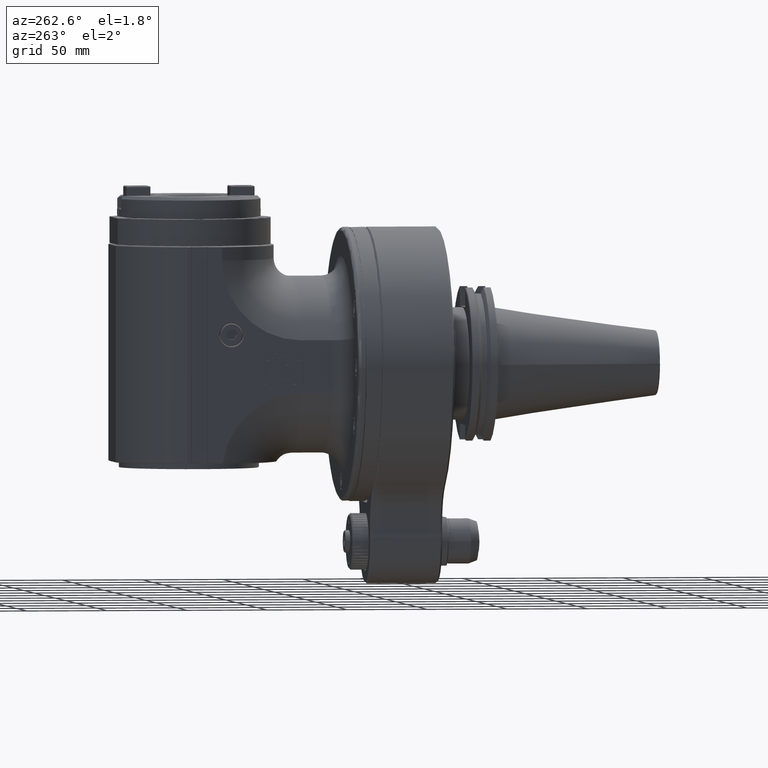
[diagram: clean part render]
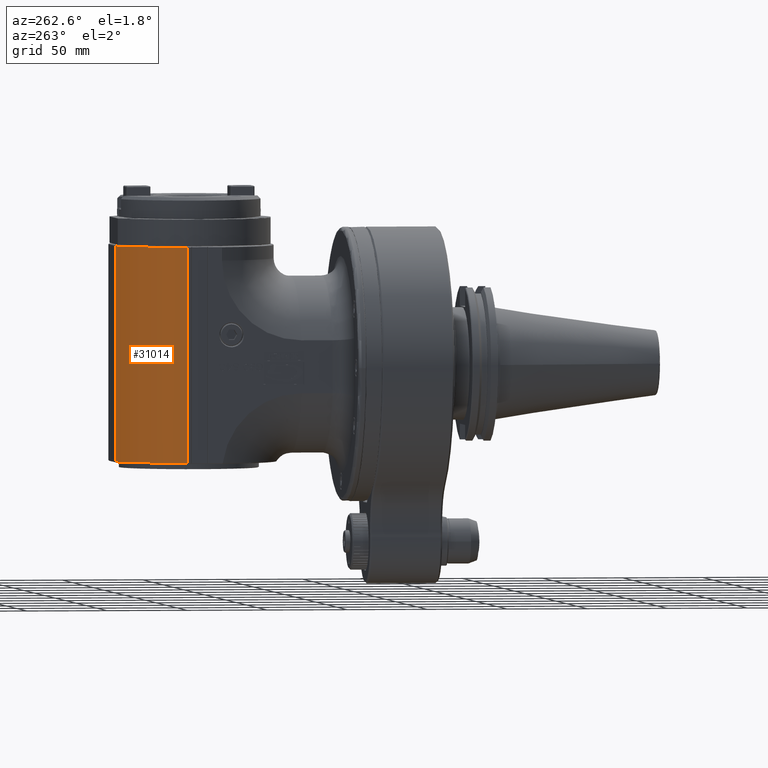
[diagram: same view with one face highlighted and labeled with its STEP entity id]
A machine part, auxiliary view. The second image highlights one B-rep face of the part: STEP entity #31014.
In plain terms, the highlighted cylindrical surface (partial cylindrical patch) has radius 53.5 mm, axis along (0, 0, 1).
Its self-contained STEP definition (entity closure, byte-faithful):
#1330=LINE('',#49085,#4136);
#1331=LINE('',#49087,#4137);
#4136=VECTOR('',#37109,133.7000000127);
#4137=VECTOR('',#37112,133.7000000038);
#6751=CYLINDRICAL_SURFACE('',#33173,53.5);
#7602=FACE_OUTER_BOUND('',#9534,.T.);
#9534=EDGE_LOOP('',(#21594,#21595,#21596,#21597));
#11600=CIRCLE('',#33172,53.5);
#11601=CIRCLE('',#33174,53.5);
#13040=VERTEX_POINT('',#48985);
#13051=VERTEX_POINT('',#49026);
#13068=VERTEX_POINT('',#49075);
#13069=VERTEX_POINT('',#49084);
#16346=EDGE_CURVE('',#13068,#13051,#11600,.T.);
#16347=EDGE_CURVE('',#13069,#13068,#1330,.T.);
#16348=EDGE_CURVE('',#13069,#13040,#11601,.T.);
#16349=EDGE_CURVE('',#13040,#13051,#1331,.T.);
#21594=ORIENTED_EDGE('',*,*,#16346,.F.);
#21595=ORIENTED_EDGE('',*,*,#16347,.F.);
#21596=ORIENTED_EDGE('',*,*,#16348,.T.);
#21597=ORIENTED_EDGE('',*,*,#16349,.T.);
#31014=ADVANCED_FACE('',(#7602),#6751,.T.);
#33172=AXIS2_PLACEMENT_3D('',#49082,#37105,#37106);
#33173=AXIS2_PLACEMENT_3D('',#49083,#37107,#37108);
#33174=AXIS2_PLACEMENT_3D('',#49086,#37110,#37111);
#37105=DIRECTION('center_axis',(0.,0.,1.));
#37106=DIRECTION('ref_axis',(-0.330159284722491,0.943925233644876,0.));
#37107=DIRECTION('center_axis',(0.,0.,1.));
#37108=DIRECTION('ref_axis',(1.,0.,0.));
#37109=DIRECTION('',(-8.850163184358E-13,5.229424472112E-12,1.));
#37110=DIRECTION('center_axis',(0.,0.,1.));
#37111=DIRECTION('ref_axis',(-0.330159284722491,0.943925233644876,0.));
#37112=DIRECTION('',(-2.837053122058E-11,2.745554137158E-12,1.));
#48985=CARTESIAN_POINT('',(-52.4999999985714,117.79563014083,-59.5000000033212));
#49026=CARTESIAN_POINT('',(-52.5,117.795630141,74.2));
#49075=CARTESIAN_POINT('',(-17.6635217321495,157.999999995496,74.200000003006));
#49082=CARTESIAN_POINT('Origin',(0.,107.5,74.2));
#49083=CARTESIAN_POINT('Origin',(0.,107.5,-80.));
#49084=CARTESIAN_POINT('',(-17.6635217320899,157.999999994975,-59.500000003355));
#49085=CARTESIAN_POINT('',(-17.66352173152,157.9999999933,-59.50000000671));
#49086=CARTESIAN_POINT('Origin',(0.,107.5,-59.5));
#49087=CARTESIAN_POINT('',(-52.49999999621,117.7956301406,-59.50000000379));